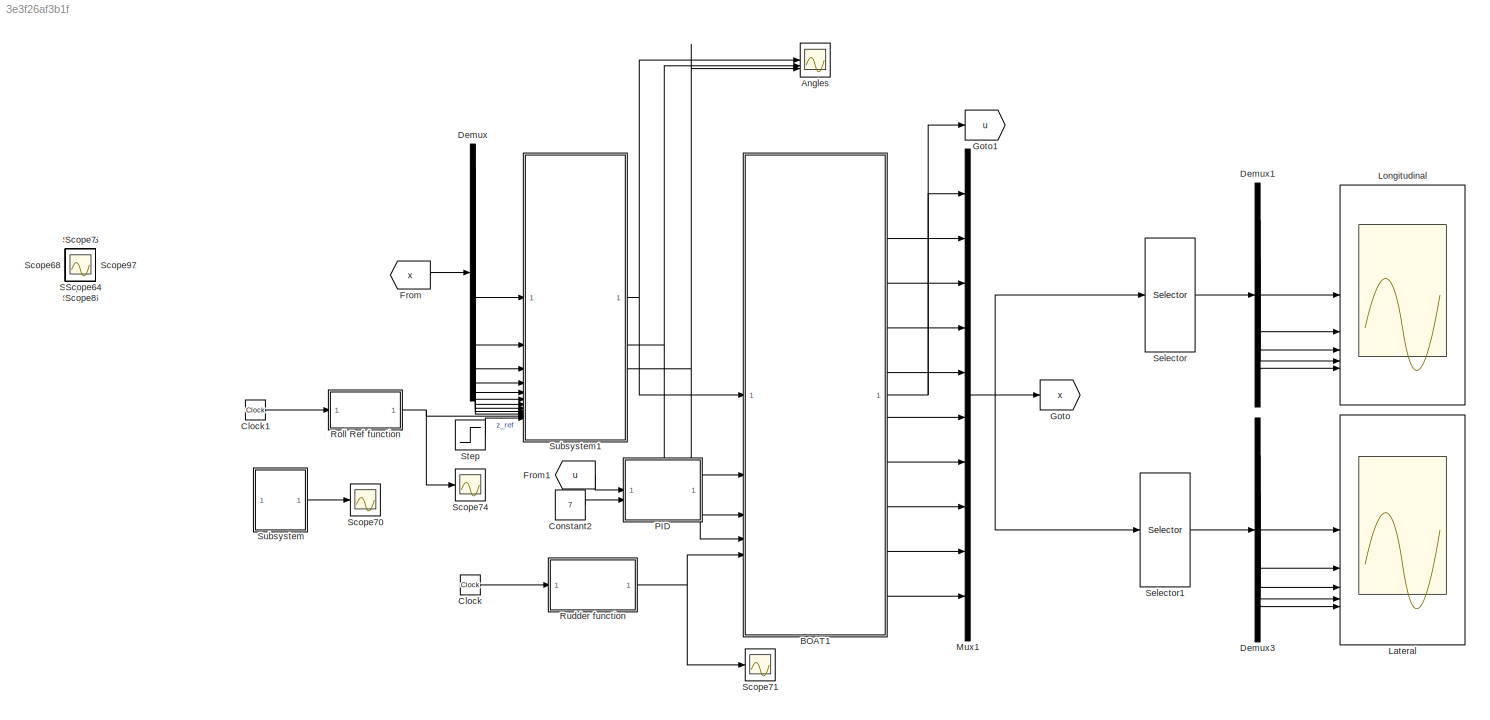
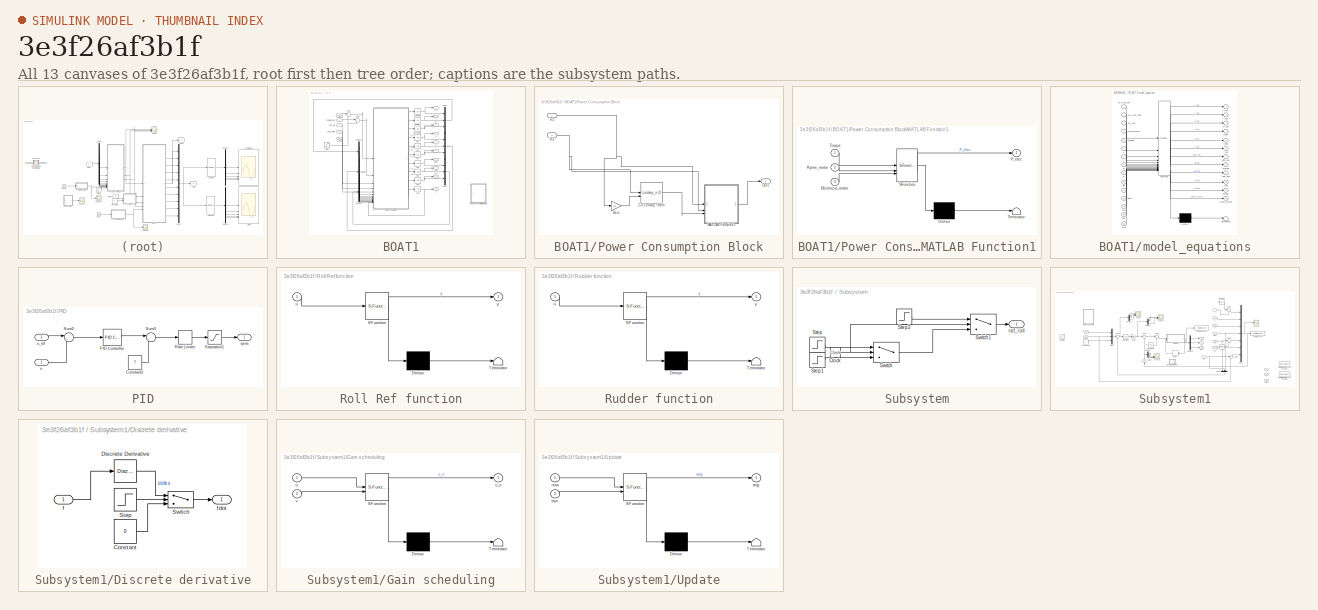
[diagram: thumbnail index - all 13 canvases of the model, root first then tree order]
MODEL slx_3e3f26af3b1f
KIND model
CONFIG AbsTol = auto
CONFIG EnableMultiTasking = off
CONFIG FixedStep = auto
CONFIG MaxStep = auto
CONFIG MinStep = auto
CONFIG RelTol = 1e-3
CONFIG SampleTimeConstraint = Unconstrained
CONFIG SolverName = VariableStepAuto
CONFIG StartTime = 0.0
CONFIG StopTime = 20
BLOCK [Scope] Angles
  Floating = off
  NumInputPorts = 3
  ScopeSpecificationString = Simulink.scopes.TimeScopeBlockCfg('CurrentConfiguration', extmgr.ConfigurationSet(extmgr.Configuration('Core','General UI',true),extmgr.Configuration('Core','Source UI',true),extmgr.Configuration('Sources','WiredSimulink',true,'DataLoggingVariableName','ScopeData1'),extmgr.Configuration('Visuals','Time Domain',true,'SerializedDisplays',{struct('MinYLimReal','-0.82863','MaxYLimReal','4.03651','YLab...<+2285ch>
BLOCK [SubSystem] BOAT1
BLOCK [Demux] BOAT1/Demux1
  Outputs = 3
BLOCK [Demux] BOAT1/Demux2
  Outputs = 3
BLOCK [Demux] BOAT1/Demux3
  Outputs = 3
BLOCK [Mux] BOAT1/Mux1
  DisplayOption = bar
  Inputs = 3
BLOCK [Mux] BOAT1/Mux2
  DisplayOption = bar
  Inputs = 3
BLOCK [Mux] BOAT1/Mux4
  DisplayOption = bar
  Inputs = 3
BLOCK [SubSystem] BOAT1/Power Consumption Block
  Commented = on
BLOCK [Lookup_n-D] BOAT1/Power Consumption Block/2-D Lookup Table
  BreakpointsForDimension1 = [1:6000]
  BreakpointsForDimension2 = [1:140]
  InputPortMap = u0,u1
  InternalRulePriority = Speed
  RndMeth = Simplest
  Table = Eff
BLOCK [Gain] BOAT1/Power Consumption Block/Gain
  Gain = 10
BLOCK [Inport] BOAT1/Power Consumption Block/In1
BLOCK [Inport] BOAT1/Power Consumption Block/In2
  Port = 2
BLOCK [SubSystem] BOAT1/Power Consumption Block/MATLAB Function1
  ErrorFcn = Stateflow.Translate.translate
  PermitHierarchicalResolution = ExplicitOnly
  SFBlockType = MATLAB Function
  TreatAsAtomicUnit = on
BLOCK [Demux] BOAT1/Power Consumption Block/MATLAB Function1/ Demux 
  Outputs = 1
BLOCK [S-Function] BOAT1/Power Consumption Block/MATLAB Function1/ SFunction 
  EnableBusSupport = off
  FunctionName = sf_sfun
  PortCounts = [3 2]
  SFcnIsStateOwnerBlock = off
  SFunctionDeploymentMode = off
  Tag = Stateflow S-Function 8
BLOCK [Terminator] BOAT1/Power Consumption Block/MATLAB Function1/ Terminator 
BLOCK [Inport] BOAT1/Power Consumption Block/MATLAB Function1/Eficiencia_motor
  Port = 3
BLOCK [Outport] BOAT1/Power Consumption Block/MATLAB Function1/P_elec
BLOCK [Inport] BOAT1/Power Consumption Block/MATLAB Function1/Rpms_motor
  Port = 2
BLOCK [Inport] BOAT1/Power Consumption Block/MATLAB Function1/Torque
BLOCK [Outport] BOAT1/Power Consumption Block/Out1
BLOCK [Step] BOAT1/Step
  After = 0
  SampleTime = 0
  Time = 0
BLOCK [Sum] BOAT1/Sum
  Inputs = |++
BLOCK [Sum] BOAT1/Sum1
  Inputs = |+-
BLOCK [Integrator] BOAT1/aUSPEED
  InitialCondition = initial_uspeed
BLOCK [Integrator] BOAT1/bWSPEED
  InitialCondition = initial_wspeed
BLOCK [Integrator] BOAT1/cQ
  InitialCondition = initial_Q
BLOCK [Integrator] BOAT1/fVSPEED
  InitialCondition = initial_vspeed
BLOCK [Inport] BOAT1/frontfoil_left
BLOCK [Inport] BOAT1/frontfoil_right
  Port = 2
BLOCK [Integrator] BOAT1/gP
  InitialCondition = initial_P
BLOCK [Integrator] BOAT1/hR
  InitialCondition = initial_R
BLOCK [Integrator] BOAT1/hR1
  InitialCondition = initial_Pitch
BLOCK [Integrator] BOAT1/hR2
  InitialCondition = initial_ROLL
BLOCK [Integrator] BOAT1/hR3
  InitialCondition = initial_YAW
BLOCK [Integrator] BOAT1/hR4
  InitialCondition = initial_Z
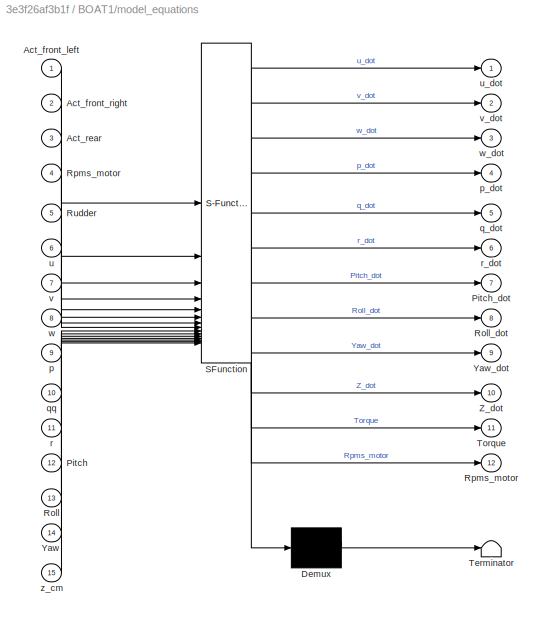
BLOCK [SubSystem] BOAT1/model_equations
  ErrorFcn = Stateflow.Translate.translate
  PermitHierarchicalResolution = ExplicitOnly
  SFBlockType = MATLAB Function
  TreatAsAtomicUnit = on
  VariantControl = Variant1
BLOCK [Demux] BOAT1/model_equations/ Demux 
  Outputs = 1
BLOCK [S-Function] BOAT1/model_equations/ SFunction 
  EnableBusSupport = on
  FunctionName = sf_sfun
  PortCounts = [15 13]
  SFcnIsStateOwnerBlock = off
  SFunctionDeploymentMode = off
  Tag = Stateflow S-Function 9
BLOCK [Terminator] BOAT1/model_equations/ Terminator 
BLOCK [Inport] BOAT1/model_equations/Act_front_left
BLOCK [Inport] BOAT1/model_equations/Act_front_right
  Port = 2
BLOCK [Inport] BOAT1/model_equations/Act_rear
  Port = 3
BLOCK [Inport] BOAT1/model_equations/Pitch
  Port = 12
BLOCK [Outport] BOAT1/model_equations/Pitch_dot
  Port = 7
BLOCK [Inport] BOAT1/model_equations/Roll
  Port = 13
BLOCK [Outport] BOAT1/model_equations/Roll_dot
  Port = 8
BLOCK [Outport] BOAT1/model_equations/Rpms_motor
  Port = 12
BLOCK [Inport] BOAT1/model_equations/Rpms_motor 
  Port = 4
BLOCK [Inport] BOAT1/model_equations/Rudder
  Port = 5
BLOCK [Outport] BOAT1/model_equations/Torque
  Port = 11
BLOCK [Inport] BOAT1/model_equations/Yaw
  Port = 14
BLOCK [Outport] BOAT1/model_equations/Yaw_dot
  Port = 9
BLOCK [Outport] BOAT1/model_equations/Z_dot
  Port = 10
BLOCK [Inport] BOAT1/model_equations/p
  Port = 9
BLOCK [Outport] BOAT1/model_equations/p_dot
  Port = 4
  VectorParamsAs1DForOutWhenUnconnected = off
BLOCK [Outport] BOAT1/model_equations/q_dot
  Port = 5
BLOCK [Inport] BOAT1/model_equations/qq
  Port = 10
BLOCK [Inport] BOAT1/model_equations/r
  Port = 11
BLOCK [Outport] BOAT1/model_equations/r_dot
  Port = 6
BLOCK [Inport] BOAT1/model_equations/u
  Port = 6
BLOCK [Outport] BOAT1/model_equations/u_dot
  VectorParamsAs1DForOutWhenUnconnected = off
BLOCK [Inport] BOAT1/model_equations/v
  Port = 7
BLOCK [Outport] BOAT1/model_equations/v_dot
  Port = 2
BLOCK [Inport] BOAT1/model_equations/w
  Port = 8
BLOCK [Outport] BOAT1/model_equations/w_dot
  Port = 3
  VectorParamsAs1DForOutWhenUnconnected = off
BLOCK [Inport] BOAT1/model_equations/z_cm
  Port = 15
BLOCK [Outport] BOAT1/p
  Port = 4
  VectorParamsAs1DForOutWhenUnconnected = off
BLOCK [Outport] BOAT1/pitch
  Port = 7
  VectorParamsAs1DForOutWhenUnconnected = off
BLOCK [Outport] BOAT1/q
  Port = 5
  VectorParamsAs1DForOutWhenUnconnected = off
BLOCK [Outport] BOAT1/r
  Port = 6
  VectorParamsAs1DForOutWhenUnconnected = off
BLOCK [Inport] BOAT1/rear_foil
  Port = 3
BLOCK [Outport] BOAT1/roll
  Port = 8
  VectorParamsAs1DForOutWhenUnconnected = off
BLOCK [Inport] BOAT1/rpms_motor
  Port = 4
BLOCK [Inport] BOAT1/rudder
  Port = 5
BLOCK [Outport] BOAT1/u
  VectorParamsAs1DForOutWhenUnconnected = off
BLOCK [Outport] BOAT1/v
  Port = 2
  VectorParamsAs1DForOutWhenUnconnected = off
BLOCK [Outport] BOAT1/w
  Port = 3
  VectorParamsAs1DForOutWhenUnconnected = off
BLOCK [Outport] BOAT1/yaw
  Port = 9
  VectorParamsAs1DForOutWhenUnconnected = off
BLOCK [Outport] BOAT1/z
  Port = 10
  VectorParamsAs1DForOutWhenUnconnected = off
BLOCK [Clock] Clock
BLOCK [Clock] Clock1
BLOCK [Constant] Constant2
  Value = 7
BLOCK [Demux] Demux
  Outputs = 10
BLOCK [Demux] Demux1
  Outputs = 5
BLOCK [Demux] Demux3
  Outputs = 5
BLOCK [From] From
  GotoTag = x
BLOCK [From] From1
  GotoTag = u
BLOCK [Goto] Goto
  GotoTag = x
BLOCK [Goto] Goto1
  GotoTag = u
BLOCK [Scope] Lateral
  Floating = off
  NumInputPorts = 5
  ScopeSpecificationString = Simulink.scopes.TimeScopeBlockCfg('CurrentConfiguration', extmgr.ConfigurationSet(extmgr.Configuration('Core','General UI',true),extmgr.Configuration('Core','Source UI',true),extmgr.Configuration('Sources','WiredSimulink',true,'DataLoggingVariableName','ScopeData1'),extmgr.Configuration('Visuals','Time Domain',true,'SerializedDisplays',{struct('MinYLimReal','-0.98732','MaxYLimReal','0.11504','YLab...<+5430ch>
BLOCK [Scope] Longitudinal
  Floating = off
  NameLocation = top
  NumInputPorts = 5
  ScopeSpecificationString = Simulink.scopes.TimeScopeBlockCfg('CurrentConfiguration', extmgr.ConfigurationSet(extmgr.Configuration('Core','General UI',true),extmgr.Configuration('Core','Source UI',true),extmgr.Configuration('Sources','WiredSimulink',true,'DataLoggingVariableName','ScopeData2'),extmgr.Configuration('Visuals','Time Domain',true,'SerializedDisplays',{struct('MinYLimReal','6.87133','MaxYLimReal','7.11107','YLabe...<+5114ch>
BLOCK [Mux] Mux1
  DisplayOption = bar
  Inputs = 10
BLOCK [SubSystem] PID
BLOCK [Constant] PID/Constant2
  Value = T
BLOCK [Reference] PID/PID Controller  REF=slpidlib/PID Controller
  SourceBlock = slpidlib/PID Controller
  SourceType = PID 1dof
BLOCK [RateLimiter] PID/Rate Limiter
  FallingSlewLimit = -1000
  InitialCondition = T
  RisingSlewLimit = 1000
  SampleTimeMode = inherited
BLOCK [Saturate] PID/Saturation1
  UpperLimit = 9000
BLOCK [Sum] PID/Sum2
  Inputs = |+-
BLOCK [Sum] PID/Sum3
  Inputs = |++
BLOCK [Outport] PID/rpms
BLOCK [Inport] PID/u
  NameLocation = top
BLOCK [Inport] PID/u_ref
  Port = 2
BLOCK [SubSystem] Roll Ref function
  ErrorFcn = Stateflow.Translate.translate
  PermitHierarchicalResolution = ExplicitOnly
  SFBlockType = MATLAB Function
  TreatAsAtomicUnit = on
BLOCK [Demux] Roll Ref function/ Demux 
  Outputs = 1
BLOCK [S-Function] Roll Ref function/ SFunction 
  EnableBusSupport = on
  FunctionName = sf_sfun
  PortCounts = [1 2]
  SFcnIsStateOwnerBlock = off
  SFunctionDeploymentMode = off
  Tag = Stateflow S-Function 5
BLOCK [Terminator] Roll Ref function/ Terminator 
BLOCK [Inport] Roll Ref function/u
BLOCK [Outport] Roll Ref function/y
BLOCK [SubSystem] Rudder function
  ErrorFcn = Stateflow.Translate.translate
  PermitHierarchicalResolution = ExplicitOnly
  SFBlockType = MATLAB Function
  TreatAsAtomicUnit = on
BLOCK [Demux] Rudder function/ Demux 
  Outputs = 1
BLOCK [S-Function] Rudder function/ SFunction 
  EnableBusSupport = on
  FunctionName = sf_sfun
  PortCounts = [1 2]
  SFcnIsStateOwnerBlock = off
  SFunctionDeploymentMode = off
  Tag = Stateflow S-Function 3
BLOCK [Terminator] Rudder function/ Terminator 
BLOCK [Inport] Rudder function/u
BLOCK [Outport] Rudder function/y
BLOCK [Scope] Scope
  Floating = off
  IOType = viewer
  NumInputPorts = 1
  ScopeSpecificationString = Simulink.scopes.TimeScopeBlockCfg('CurrentConfiguration', extmgr.ConfigurationSet(extmgr.Configuration('Core','General UI',true),extmgr.Configuration('Core','Source UI',true),extmgr.Configuration('Sources','WiredSimulink',true,'DataLoggingVariableName','ScopeData1'),extmgr.Configuration('Visuals','Time Domain',true,'SerializedDisplays',{struct('MinYLimReal','4.06844','MaxYLimReal','5.18693','YLabe...<+1411ch>
BLOCK [Scope] Scope1
  Floating = off
  IOType = viewer
  NumInputPorts = 1
  ScopeSpecificationString = Simulink.scopes.TimeScopeBlockCfg('CurrentConfiguration', extmgr.ConfigurationSet(extmgr.Configuration('Core','General UI',true),extmgr.Configuration('Core','Source UI',true),extmgr.Configuration('Sources','WiredSimulink',true,'DataLoggingVariableName','ScopeData1'),extmgr.Configuration('Visuals','Time Domain',true,'SerializedDisplays',{struct('MinYLimReal','-0.69407','MaxYLimReal','1.09135','YLab...<+1388ch>
BLOCK [Scope] Scope10
  Floating = off
  IOType = viewer
  NumInputPorts = 1
  ScopeSpecificationString = Simulink.scopes.TimeScopeBlockCfg('CurrentConfiguration', extmgr.ConfigurationSet(extmgr.Configuration('Core','General UI',true),extmgr.Configuration('Core','Source UI',true),extmgr.Configuration('Sources','WiredSimulink',true,'DataLoggingVariableName','ScopeData1'),extmgr.Configuration('Visuals','Time Domain',true,'SerializedDisplays',{struct('MinYLimReal','-1.00000','MaxYLimReal','1.00000','YLab...<+1359ch>
BLOCK [Scope] Scope11
  Floating = off
  IOType = viewer
  NumInputPorts = 1
  ScopeSpecificationString = Simulink.scopes.TimeScopeBlockCfg('CurrentConfiguration', extmgr.ConfigurationSet(extmgr.Configuration('Core','General UI',true),extmgr.Configuration('Core','Source UI',true),extmgr.Configuration('Sources','WiredSimulink',true,'DataLoggingVariableName','ScopeData1'),extmgr.Configuration('Visuals','Time Domain',true,'SerializedDisplays',{struct('MinYLimReal','-2.99323','MaxYLimReal','6.45603','YLab...<+1359ch>
BLOCK [Scope] Scope12
  Floating = off
  IOType = viewer
  NumInputPorts = 1
  ScopeSpecificationString = Simulink.scopes.TimeScopeBlockCfg('CurrentConfiguration', extmgr.ConfigurationSet(extmgr.Configuration('Core','General UI',true),extmgr.Configuration('Core','Source UI',true),extmgr.Configuration('Sources','WiredSimulink',true,'DataLoggingVariableName','ScopeData1'),extmgr.Configuration('Visuals','Time Domain',true,'SerializedDisplays',{struct('MinYLimReal','-0.5','MaxYLimReal','-0.3','YLabelReal'...<+1337ch>
BLOCK [Scope] Scope13
  Floating = off
  IOType = viewer
  NumInputPorts = 1
  ScopeSpecificationString = Simulink.scopes.TimeScopeBlockCfg('CurrentConfiguration', extmgr.ConfigurationSet(extmgr.Configuration('Core','General UI',true),extmgr.Configuration('Core','Source UI',true),extmgr.Configuration('Sources','WiredSimulink',true,'DataLoggingVariableName','ScopeData1'),extmgr.Configuration('Visuals','Time Domain',true,'SerializedDisplays',{struct('MinYLimReal','-1068104.69611','MaxYLimReal','9611384....<+1434ch>
BLOCK [Scope] Scope14
  Floating = off
  IOType = viewer
  NumInputPorts = 1
  ScopeSpecificationString = Simulink.scopes.TimeScopeBlockCfg('CurrentConfiguration', extmgr.ConfigurationSet(extmgr.Configuration('Core','General UI',true),extmgr.Configuration('Core','Source UI',true),extmgr.Configuration('Sources','WiredSimulink',true,'DataLoggingVariableName','ScopeData1'),extmgr.Configuration('Visuals','Time Domain',true,'SerializedDisplays',{struct('MinYLimReal','-10.00000','MaxYLimReal','10.00000','YL...<+1394ch>
BLOCK [Scope] Scope15
  Floating = off
  IOType = viewer
  NumInputPorts = 1
  ScopeSpecificationString = Simulink.scopes.TimeScopeBlockCfg('CurrentConfiguration', extmgr.ConfigurationSet(extmgr.Configuration('Core','General UI',true),extmgr.Configuration('Core','Source UI',true),extmgr.Configuration('Sources','WiredSimulink',true,'DataLoggingVariableName','ScopeData2'),extmgr.Configuration('Visuals','Time Domain',true,'SerializedDisplays',{struct('MinYLimReal','0.42395','MaxYLimReal','1.1452','YLabel...<+1353ch>
BLOCK [Scope] Scope16
  Floating = off
  IOType = viewer
  NumInputPorts = 1
  ScopeSpecificationString = Simulink.scopes.TimeScopeBlockCfg('CurrentConfiguration', extmgr.ConfigurationSet(extmgr.Configuration('Core','General UI',true),extmgr.Configuration('Core','Source UI',true),extmgr.Configuration('Sources','WiredSimulink',true,'DataLoggingVariableName','ScopeData1'),extmgr.Configuration('Visuals','Time Domain',true,'SerializedDisplays',{struct('MinYLimReal','1787.16851','MaxYLimReal','6468.09239',...<+1381ch>
BLOCK [Scope] Scope17
  Floating = off
  IOType = viewer
  NumInputPorts = 1
  ScopeSpecificationString = Simulink.scopes.TimeScopeBlockCfg('CurrentConfiguration', extmgr.ConfigurationSet(extmgr.Configuration('Core','General UI',true),extmgr.Configuration('Core','Source UI',true),extmgr.Configuration('Sources','WiredSimulink',true,'DataLoggingVariableName','ScopeData2'),extmgr.Configuration('Visuals','Time Domain',true,'SerializedDisplays',{struct('MinYLimReal','-3.58864','MaxYLimReal','2.29775','YLab...<+1402ch>
BLOCK [Scope] Scope18
  Floating = off
  IOType = viewer
  NumInputPorts = 1
  ScopeSpecificationString = Simulink.scopes.TimeScopeBlockCfg('CurrentConfiguration', extmgr.ConfigurationSet(extmgr.Configuration('Core','General UI',true),extmgr.Configuration('Core','Source UI',true),extmgr.Configuration('Sources','WiredSimulink',true,'DataLoggingVariableName','ScopeData3'),extmgr.Configuration('Visuals','Time Domain',true,'SerializedDisplays',{struct('MinYLimReal','1.68278','MaxYLimReal','4.37574','YLabe...<+1357ch>
BLOCK [Scope] Scope19
  Floating = off
  IOType = viewer
  NumInputPorts = 1
  ScopeSpecificationString = Simulink.scopes.TimeScopeBlockCfg('CurrentConfiguration', extmgr.ConfigurationSet(extmgr.Configuration('Core','General UI',true),extmgr.Configuration('Core','Source UI',true),extmgr.Configuration('Sources','WiredSimulink',true,'DataLoggingVariableName','ScopeData1'),extmgr.Configuration('Visuals','Time Domain',true,'SerializedDisplays',{struct('MinYLimReal','-22.41764','MaxYLimReal','23.2781','YLa...<+1396ch>
BLOCK [Scope] Scope2
  Floating = off
  IOType = viewer
  NumInputPorts = 1
  ScopeSpecificationString = Simulink.scopes.TimeScopeBlockCfg('CurrentConfiguration', extmgr.ConfigurationSet(extmgr.Configuration('Core','General UI',true),extmgr.Configuration('Core','Source UI',true),extmgr.Configuration('Sources','WiredSimulink',true,'DataLoggingVariableName','ScopeData1'),extmgr.Configuration('Visuals','Time Domain',true,'SerializedDisplays',{struct('MinYLimReal','-0.5195','MaxYLimReal','-0.33996','YLab...<+1357ch>
BLOCK [Scope] Scope20
  Floating = off
  IOType = viewer
  NumInputPorts = 1
  ScopeSpecificationString = Simulink.scopes.TimeScopeBlockCfg('CurrentConfiguration', extmgr.ConfigurationSet(extmgr.Configuration('Core','General UI',true),extmgr.Configuration('Core','Source UI',true),extmgr.Configuration('Sources','WiredSimulink',true,'DataLoggingVariableName','ScopeData8'),extmgr.Configuration('Visuals','Time Domain',true,'SerializedDisplays',{struct('MinYLimReal','-2.49229','MaxYLimReal','15.10017','YLa...<+1398ch>
BLOCK [Scope] Scope21
  Floating = off
  IOType = viewer
  NumInputPorts = 1
  ScopeSpecificationString = Simulink.scopes.TimeScopeBlockCfg('CurrentConfiguration', extmgr.ConfigurationSet(extmgr.Configuration('Core','General UI',true),extmgr.Configuration('Core','Source UI',true),extmgr.Configuration('Sources','WiredSimulink',true,'DataLoggingVariableName','ScopeData3'),extmgr.Configuration('Visuals','Time Domain',true,'SerializedDisplays',{struct('MinYLimReal','-18648991873633264003448832.00000','Max...<+1561ch>
BLOCK [Scope] Scope22
  Floating = off
  IOType = viewer
  NumInputPorts = 1
  ScopeSpecificationString = Simulink.scopes.TimeScopeBlockCfg('CurrentConfiguration', extmgr.ConfigurationSet(extmgr.Configuration('Core','General UI',true),extmgr.Configuration('Core','Source UI',true),extmgr.Configuration('Sources','WiredSimulink',true,'DataLoggingVariableName','ScopeData4'),extmgr.Configuration('Visuals','Time Domain',true,'SerializedDisplays',{struct('MinYLimReal','65.875','MaxYLimReal','77.125','YLabelR...<+1384ch>
BLOCK [Scope] Scope23
  Floating = off
  IOType = viewer
  NumInputPorts = 1
  ScopeSpecificationString = Simulink.scopes.TimeScopeBlockCfg('CurrentConfiguration', extmgr.ConfigurationSet(extmgr.Configuration('Core','General UI',true),extmgr.Configuration('Core','Source UI',true),extmgr.Configuration('Sources','WiredSimulink',true,'DataLoggingVariableName','ScopeData5'),extmgr.Configuration('Visuals','Time Domain',true,'SerializedDisplays',{struct('MinYLimReal','-2.10514','MaxYLimReal','8.21253','YLab...<+1394ch>
BLOCK [Scope] Scope24
  Floating = off
  IOType = viewer
  NumInputPorts = 1
  ScopeSpecificationString = Simulink.scopes.TimeScopeBlockCfg('CurrentConfiguration', extmgr.ConfigurationSet(extmgr.Configuration('Core','General UI',true),extmgr.Configuration('Core','Source UI',true),extmgr.Configuration('Sources','WiredSimulink',true,'DataLoggingVariableName','ScopeData6'),extmgr.Configuration('Visuals','Time Domain',true,'SerializedDisplays',{struct('MinYLimReal','6.6875','MaxYLimReal','7.8125','YLabelR...<+1384ch>
BLOCK [Scope] Scope25
  Floating = off
  IOType = viewer
  NumInputPorts = 1
  ScopeSpecificationString = Simulink.scopes.TimeScopeBlockCfg('CurrentConfiguration', extmgr.ConfigurationSet(extmgr.Configuration('Core','General UI',true),extmgr.Configuration('Core','Source UI',true),extmgr.Configuration('Sources','WiredSimulink',true,'DataLoggingVariableName','ScopeData7'),extmgr.Configuration('Visuals','Time Domain',true,'SerializedDisplays',{struct('MinYLimReal','65.875','MaxYLimReal','77.125','YLabelR...<+1384ch>
BLOCK [Scope] Scope26
  Floating = off
  IOType = viewer
  NumInputPorts = 1
  ScopeSpecificationString = Simulink.scopes.TimeScopeBlockCfg('CurrentConfiguration', extmgr.ConfigurationSet(extmgr.Configuration('Core','General UI',true),extmgr.Configuration('Core','Source UI',true),extmgr.Configuration('Sources','WiredSimulink',true,'DataLoggingVariableName','ScopeData10'),extmgr.Configuration('Visuals','Time Domain',true,'SerializedDisplays',{struct('MinYLimReal','-0.30684','MaxYLimReal','1.12166','YLa...<+1395ch>
BLOCK [Scope] Scope27
  Floating = off
  IOType = viewer
  NumInputPorts = 1
  ScopeSpecificationString = Simulink.scopes.TimeScopeBlockCfg('CurrentConfiguration', extmgr.ConfigurationSet(extmgr.Configuration('Core','General UI',true),extmgr.Configuration('Core','Source UI',true),extmgr.Configuration('Sources','WiredSimulink',true,'DataLoggingVariableName','ScopeData9'),extmgr.Configuration('Visuals','Time Domain',true,'SerializedDisplays',{struct('MinYLimReal','-6.44173','MaxYLimReal','11.95964','YLa...<+1400ch>
BLOCK [Scope] Scope28
  Floating = off
  IOType = viewer
  NumInputPorts = 1
  ScopeSpecificationString = Simulink.scopes.TimeScopeBlockCfg('CurrentConfiguration', extmgr.ConfigurationSet(extmgr.Configuration('Core','General UI',true),extmgr.Configuration('Core','Source UI',true),extmgr.Configuration('Sources','WiredSimulink',true,'DataLoggingVariableName','ScopeData1'),extmgr.Configuration('Visuals','Time Domain',true,'SerializedDisplays',{struct('MinYLimReal','-1.33813','MaxYLimReal','6.81535','YLab...<+1394ch>
BLOCK [Scope] Scope29
  Floating = off
  IOType = viewer
  NumInputPorts = 1
  ScopeSpecificationString = Simulink.scopes.TimeScopeBlockCfg('CurrentConfiguration', extmgr.ConfigurationSet(extmgr.Configuration('Core','General UI',true),extmgr.Configuration('Core','Source UI',true),extmgr.Configuration('Sources','WiredSimulink',true,'DataLoggingVariableName','ScopeData1'),extmgr.Configuration('Visuals','Time Domain',true,'SerializedDisplays',{struct('MinYLimReal','-91.65644','MaxYLimReal','71.78464','YL...<+1400ch>
BLOCK [Scope] Scope3
  Floating = off
  IOType = viewer
  NumInputPorts = 1
  ScopeSpecificationString = Simulink.scopes.TimeScopeBlockCfg('CurrentConfiguration', extmgr.ConfigurationSet(extmgr.Configuration('Core','General UI',true),extmgr.Configuration('Core','Source UI',true),extmgr.Configuration('Sources','WiredSimulink',true,'DataLoggingVariableName','ScopeData1'),extmgr.Configuration('Visuals','Time Domain',true,'SerializedDisplays',{struct('MinYLimReal','4.2','MaxYLimReal','6.2','YLabelReal','...<+1325ch>
BLOCK [Scope] Scope30
  Floating = off
  IOType = viewer
  NumInputPorts = 1
  ScopeSpecificationString = Simulink.scopes.TimeScopeBlockCfg('CurrentConfiguration', extmgr.ConfigurationSet(extmgr.Configuration('Core','General UI',true),extmgr.Configuration('Core','Source UI',true),extmgr.Configuration('Sources','WiredSimulink',true,'DataLoggingVariableName','ScopeData1'),extmgr.Configuration('Visuals','Time Domain',true,'SerializedDisplays',{struct('MinYLimReal','-15.92323','MaxYLimReal','34.55654','YL...<+1400ch>
BLOCK [Scope] Scope31
  Floating = off
  IOType = viewer
  NumInputPorts = 1
  ScopeSpecificationString = Simulink.scopes.TimeScopeBlockCfg('CurrentConfiguration', extmgr.ConfigurationSet(extmgr.Configuration('Core','General UI',true),extmgr.Configuration('Core','Source UI',true),extmgr.Configuration('Sources','WiredSimulink',true,'DataLoggingVariableName','ScopeData1'),extmgr.Configuration('Visuals','Time Domain',true,'SerializedDisplays',{struct('MinYLimReal','-0.5126','MaxYLimReal','0.69257','YLabe...<+1392ch>
BLOCK [Scope] Scope32
  Floating = off
  IOType = viewer
  NumInputPorts = 1
  ScopeSpecificationString = Simulink.scopes.TimeScopeBlockCfg('CurrentConfiguration', extmgr.ConfigurationSet(extmgr.Configuration('Core','General UI',true),extmgr.Configuration('Core','Source UI',true),extmgr.Configuration('Sources','WiredSimulink',true,'DataLoggingVariableName','ScopeData1'),extmgr.Configuration('Visuals','Time Domain',true,'SerializedDisplays',{struct('MinYLimReal','-0.125','MaxYLimReal','1.125','YLabelRe...<+1382ch>
BLOCK [Scope] Scope33
  Floating = off
  IOType = viewer
  NumInputPorts = 1
  ScopeSpecificationString = Simulink.scopes.TimeScopeBlockCfg('CurrentConfiguration', extmgr.ConfigurationSet(extmgr.Configuration('Core','General UI',true),extmgr.Configuration('Core','Source UI',true),extmgr.Configuration('Sources','WiredSimulink',true,'DataLoggingVariableName','ScopeData2'),extmgr.Configuration('Visuals','Time Domain',true,'SerializedDisplays',{struct('MinYLimReal','-1.32547','MaxYLimReal','7.92916','YLab...<+1413ch>
BLOCK [Scope] Scope34
  Floating = off
  IOType = viewer
  NumInputPorts = 1
  ScopeSpecificationString = Simulink.scopes.TimeScopeBlockCfg('CurrentConfiguration', extmgr.ConfigurationSet(extmgr.Configuration('Core','General UI',true),extmgr.Configuration('Core','Source UI',true),extmgr.Configuration('Sources','WiredSimulink',true,'DataLoggingVariableName','ScopeData3'),extmgr.Configuration('Visuals','Time Domain',true,'SerializedDisplays',{struct('MinYLimReal','-0.0375','MaxYLimReal','0.3375','YLabel...<+1388ch>
BLOCK [Scope] Scope35
  Floating = off
  IOType = viewer
  NumInputPorts = 1
  ScopeSpecificationString = Simulink.scopes.TimeScopeBlockCfg('CurrentConfiguration', extmgr.ConfigurationSet(extmgr.Configuration('Core','General UI',true),extmgr.Configuration('Core','Source UI',true),extmgr.Configuration('Sources','WiredSimulink',true,'DataLoggingVariableName','ScopeData4'),extmgr.Configuration('Visuals','Time Domain',true,'SerializedDisplays',{struct('MinYLimReal','-3.91195','MaxYLimReal','9.06917','YLab...<+1394ch>
BLOCK [Scope] Scope36
  Floating = off
  IOType = viewer
  NumInputPorts = 1
  ScopeSpecificationString = Simulink.scopes.TimeScopeBlockCfg('CurrentConfiguration', extmgr.ConfigurationSet(extmgr.Configuration('Core','General UI',true),extmgr.Configuration('Core','Source UI',true),extmgr.Configuration('Sources','WiredSimulink',true,'DataLoggingVariableName','ScopeData5'),extmgr.Configuration('Visuals','Time Domain',true,'SerializedDisplays',{struct('MinYLimReal','-606.77276','MaxYLimReal','5476.0946','...<+1408ch>
BLOCK [Scope] Scope37
  Floating = off
  IOType = viewer
  NumInputPorts = 1
  ScopeSpecificationString = Simulink.scopes.TimeScopeBlockCfg('CurrentConfiguration', extmgr.ConfigurationSet(extmgr.Configuration('Core','General UI',true),extmgr.Configuration('Core','Source UI',true),extmgr.Configuration('Sources','WiredSimulink',true,'DataLoggingVariableName','ScopeData6'),extmgr.Configuration('Visuals','Time Domain',true,'SerializedDisplays',{struct('MinYLimReal','3678.10103','MaxYLimReal','5281.1876','...<+1431ch>
BLOCK [Scope] Scope38
  Floating = off
  IOType = viewer
  NumInputPorts = 1
  ScopeSpecificationString = Simulink.scopes.TimeScopeBlockCfg('CurrentConfiguration', extmgr.ConfigurationSet(extmgr.Configuration('Core','General UI',true),extmgr.Configuration('Core','Source UI',true),extmgr.Configuration('Sources','WiredSimulink',true,'DataLoggingVariableName','ScopeData7'),extmgr.Configuration('Visuals','Time Domain',true,'SerializedDisplays',{struct('MinYLimReal','-0.125','MaxYLimReal','1.125','YLabelRe...<+1382ch>
BLOCK [Scope] Scope39
  Floating = off
  IOType = viewer
  NumInputPorts = 1
  ScopeSpecificationString = Simulink.scopes.TimeScopeBlockCfg('CurrentConfiguration', extmgr.ConfigurationSet(extmgr.Configuration('Core','General UI',true),extmgr.Configuration('Core','Source UI',true),extmgr.Configuration('Sources','WiredSimulink',true,'DataLoggingVariableName','ScopeData8'),extmgr.Configuration('Visuals','Time Domain',true,'SerializedDisplays',{struct('MinYLimReal','-603.58579','MaxYLimReal','5447.41188',...<+1412ch>
BLOCK [Scope] Scope4
  Floating = off
  IOType = viewer
  NumInputPorts = 1
  ScopeSpecificationString = Simulink.scopes.TimeScopeBlockCfg('CurrentConfiguration', extmgr.ConfigurationSet(extmgr.Configuration('Core','General UI',true),extmgr.Configuration('Core','Source UI',true),extmgr.Configuration('Sources','WiredSimulink',true,'DataLoggingVariableName','ScopeData1'),extmgr.Configuration('Visuals','Time Domain',true,'SerializedDisplays',{struct('MinYLimReal','-0.58125','MaxYLimReal','-0.16875','YLa...<+1361ch>
BLOCK [Scope] Scope40
  Floating = off
  IOType = viewer
  NumInputPorts = 1
  ScopeSpecificationString = Simulink.scopes.TimeScopeBlockCfg('CurrentConfiguration', extmgr.ConfigurationSet(extmgr.Configuration('Core','General UI',true),extmgr.Configuration('Core','Source UI',true),extmgr.Configuration('Sources','WiredSimulink',true,'DataLoggingVariableName','ScopeData9'),extmgr.Configuration('Visuals','Time Domain',true,'SerializedDisplays',{struct('MinYLimReal','-1.2225','MaxYLimReal','11.0025','YLabe...<+1357ch>
BLOCK [Scope] Scope41
  Floating = off
  IOType = viewer
  NumInputPorts = 1
  ScopeSpecificationString = Simulink.scopes.TimeScopeBlockCfg('CurrentConfiguration', extmgr.ConfigurationSet(extmgr.Configuration('Core','General UI',true),extmgr.Configuration('Core','Source UI',true),extmgr.Configuration('Sources','WiredSimulink',true,'DataLoggingVariableName','ScopeData10'),extmgr.Configuration('Visuals','Time Domain',true,'SerializedDisplays',{struct('MinYLimReal','-10.4729','MaxYLimReal','9.39556','YLa...<+1414ch>
BLOCK [Scope] Scope42
  Floating = off
  IOType = viewer
  NumInputPorts = 1
  ScopeSpecificationString = Simulink.scopes.TimeScopeBlockCfg('CurrentConfiguration', extmgr.ConfigurationSet(extmgr.Configuration('Core','General UI',true),extmgr.Configuration('Core','Source UI',true),extmgr.Configuration('Sources','WiredSimulink',true,'DataLoggingVariableName','ScopeData2'),extmgr.Configuration('Visuals','Time Domain',true,'SerializedDisplays',{struct('MinYLimReal','-0.45','MaxYLimReal','0.05','YLabelReal...<+1376ch>
BLOCK [Scope] Scope43
  Floating = off
  IOType = viewer
  NumInputPorts = 1
  ScopeSpecificationString = Simulink.scopes.TimeScopeBlockCfg('CurrentConfiguration', extmgr.ConfigurationSet(extmgr.Configuration('Core','General UI',true),extmgr.Configuration('Core','Source UI',true),extmgr.Configuration('Sources','WiredSimulink',true,'DataLoggingVariableName','ScopeData1'),extmgr.Configuration('Visuals','Time Domain',true,'SerializedDisplays',{struct('MinYLimReal','-5.26125','MaxYLimReal','10.11859','YLa...<+1398ch>
BLOCK [Scope] Scope44
  Floating = off
  IOType = viewer
  NumInputPorts = 1
  ScopeSpecificationString = Simulink.scopes.TimeScopeBlockCfg('CurrentConfiguration', extmgr.ConfigurationSet(extmgr.Configuration('Core','General UI',true),extmgr.Configuration('Core','Source UI',true),extmgr.Configuration('Sources','WiredSimulink',true,'DataLoggingVariableName','ScopeData1'),extmgr.Configuration('Visuals','Time Domain',true,'SerializedDisplays',{struct('MinYLimReal','-1.26766','MaxYLimReal','1.71053','YLab...<+1413ch>
BLOCK [Scope] Scope45
  Floating = off
  IOType = viewer
  NumInputPorts = 1
  ScopeSpecificationString = Simulink.scopes.TimeScopeBlockCfg('CurrentConfiguration', extmgr.ConfigurationSet(extmgr.Configuration('Core','General UI',true),extmgr.Configuration('Core','Source UI',true),extmgr.Configuration('Sources','WiredSimulink',true,'DataLoggingVariableName','ScopeData2'),extmgr.Configuration('Visuals','Time Domain',true,'SerializedDisplays',{struct('MinYLimReal','-1.00000','MaxYLimReal','1.00000','YLab...<+1359ch>
BLOCK [Scope] Scope46
  Floating = off
  IOType = viewer
  NumInputPorts = 1
  ScopeSpecificationString = Simulink.scopes.TimeScopeBlockCfg('CurrentConfiguration', extmgr.ConfigurationSet(extmgr.Configuration('Core','General UI',true),extmgr.Configuration('Core','Source UI',true),extmgr.Configuration('Sources','WiredSimulink',true,'DataLoggingVariableName','ScopeData1'),extmgr.Configuration('Visuals','Time Domain',true,'SerializedDisplays',{struct('MinYLimReal','-19.28817','MaxYLimReal','2.14313','YLa...<+1398ch>
BLOCK [Scope] Scope47
  Floating = off
  IOType = viewer
  NumInputPorts = 1
  ScopeSpecificationString = Simulink.scopes.TimeScopeBlockCfg('CurrentConfiguration', extmgr.ConfigurationSet(extmgr.Configuration('Core','General UI',true),extmgr.Configuration('Core','Source UI',true),extmgr.Configuration('Sources','WiredSimulink',true,'DataLoggingVariableName','ScopeData2'),extmgr.Configuration('Visuals','Time Domain',true,'SerializedDisplays',{struct('MinYLimReal','-1.71942','MaxYLimReal','7.69987','YLab...<+1694ch>
BLOCK [Scope] Scope48
  Floating = off
  IOType = viewer
  NumInputPorts = 1
  ScopeSpecificationString = Simulink.scopes.TimeScopeBlockCfg('CurrentConfiguration', extmgr.ConfigurationSet(extmgr.Configuration('Core','General UI',true),extmgr.Configuration('Core','Source UI',true),extmgr.Configuration('Sources','WiredSimulink',true,'DataLoggingVariableName','ScopeData3'),extmgr.Configuration('Visuals','Time Domain',true,'SerializedDisplays',{struct('MinYLimReal','5.75','MaxYLimReal','8.25','YLabelReal'...<+1333ch>
BLOCK [Scope] Scope49
  Floating = off
  IOType = viewer
  NumInputPorts = 1
  ScopeSpecificationString = Simulink.scopes.TimeScopeBlockCfg('CurrentConfiguration', extmgr.ConfigurationSet(extmgr.Configuration('Core','General UI',true),extmgr.Configuration('Core','Source UI',true),extmgr.Configuration('Sources','WiredSimulink',true,'DataLoggingVariableName','ScopeData1'),extmgr.Configuration('Visuals','Time Domain',true,'SerializedDisplays',{struct('MinYLimReal','-0.44533','MaxYLimReal','-0.16539','YLa...<+1361ch>
BLOCK [Scope] Scope5
  Floating = off
  IOType = viewer
  NumInputPorts = 1
  ScopeSpecificationString = Simulink.scopes.TimeScopeBlockCfg('CurrentConfiguration', extmgr.ConfigurationSet(extmgr.Configuration('Core','General UI',true),extmgr.Configuration('Core','Source UI',true),extmgr.Configuration('Sources','WiredSimulink',true,'DataLoggingVariableName','ScopeData2'),extmgr.Configuration('Visuals','Time Domain',true,'SerializedDisplays',{struct('MinYLimReal','1.59557','MaxYLimReal','9.41822','YLabe...<+1390ch>
BLOCK [Scope] Scope50
  Floating = off
  IOType = viewer
  NumInputPorts = 1
  ScopeSpecificationString = Simulink.scopes.TimeScopeBlockCfg('CurrentConfiguration', extmgr.ConfigurationSet(extmgr.Configuration('Core','General UI',true),extmgr.Configuration('Core','Source UI',true),extmgr.Configuration('Sources','WiredSimulink',true,'DataLoggingVariableName','ScopeData1'),extmgr.Configuration('Visuals','Time Domain',true,'SerializedDisplays',{struct('MinYLimReal','-1.00000','MaxYLimReal','1.00000','YLab...<+1359ch>
BLOCK [Scope] Scope51
  Floating = off
  IOType = viewer
  NumInputPorts = 1
  ScopeSpecificationString = Simulink.scopes.TimeScopeBlockCfg('CurrentConfiguration', extmgr.ConfigurationSet(extmgr.Configuration('Core','General UI',true),extmgr.Configuration('Core','Source UI',true),extmgr.Configuration('Sources','WiredSimulink',true,'DataLoggingVariableName','ScopeData2'),extmgr.Configuration('Visuals','Time Domain',true,'SerializedDisplays',{struct('MinYLimReal','6282.08165','MaxYLimReal','6974.36087',...<+1381ch>
BLOCK [Scope] Scope52
  Floating = off
  IOType = viewer
  NumInputPorts = 1
  ScopeSpecificationString = Simulink.scopes.TimeScopeBlockCfg('CurrentConfiguration', extmgr.ConfigurationSet(extmgr.Configuration('Core','General UI',true),extmgr.Configuration('Core','Source UI',true),extmgr.Configuration('Sources','WiredSimulink',true,'DataLoggingVariableName','ScopeData1'),extmgr.Configuration('Visuals','Time Domain',true,'SerializedDisplays',{struct('MinYLimReal','-0.125','MaxYLimReal','1.125','YLabelRe...<+1347ch>
BLOCK [Scope] Scope53
  Floating = off
  IOType = viewer
  NumInputPorts = 1
  ScopeSpecificationString = Simulink.scopes.TimeScopeBlockCfg('CurrentConfiguration', extmgr.ConfigurationSet(extmgr.Configuration('Core','General UI',true),extmgr.Configuration('Core','Source UI',true),extmgr.Configuration('Sources','WiredSimulink',true,'DataLoggingVariableName','ScopeData1'),extmgr.Configuration('Visuals','Time Domain',true,'SerializedDisplays',{struct('MinYLimReal','-1.7754','MaxYLimReal','11.34058','YLab...<+1448ch>
BLOCK [Scope] Scope54
  Floating = off
  IOType = viewer
  NumInputPorts = 1
  ScopeSpecificationString = Simulink.scopes.TimeScopeBlockCfg('CurrentConfiguration', extmgr.ConfigurationSet(extmgr.Configuration('Core','General UI',true),extmgr.Configuration('Core','Source UI',true),extmgr.Configuration('Sources','WiredSimulink',true,'DataLoggingVariableName','ScopeData2'),extmgr.Configuration('Visuals','Time Domain',true,'SerializedDisplays',{struct('MinYLimReal','2.31258','MaxYLimReal','2.36065','YLabe...<+1412ch>
BLOCK [Scope] Scope55
  Floating = off
  IOType = viewer
  NumInputPorts = 1
  ScopeSpecificationString = Simulink.scopes.TimeScopeBlockCfg('CurrentConfiguration', extmgr.ConfigurationSet(extmgr.Configuration('Core','General UI',true),extmgr.Configuration('Core','Source UI',true),extmgr.Configuration('Sources','WiredSimulink',true,'DataLoggingVariableName','ScopeData2'),extmgr.Configuration('Visuals','Time Domain',true,'SerializedDisplays',{struct('MinYLimReal','9.00000','MaxYLimReal','11.00000','YLab...<+1361ch>
BLOCK [Scope] Scope56
  Floating = off
  IOType = viewer
  NumInputPorts = 1
  ScopeSpecificationString = Simulink.scopes.TimeScopeBlockCfg('CurrentConfiguration', extmgr.ConfigurationSet(extmgr.Configuration('Core','General UI',true),extmgr.Configuration('Core','Source UI',true),extmgr.Configuration('Sources','WiredSimulink',true,'DataLoggingVariableName','ScopeData3'),extmgr.Configuration('Visuals','Time Domain',true,'SerializedDisplays',{struct('MinYLimReal','-5.2299','MaxYLimReal','47.06913','YLab...<+1361ch>
BLOCK [Scope] Scope57
  Floating = off
  IOType = viewer
  NumInputPorts = 1
  ScopeSpecificationString = Simulink.scopes.TimeScopeBlockCfg('CurrentConfiguration', extmgr.ConfigurationSet(extmgr.Configuration('Core','General UI',true),extmgr.Configuration('Core','Source UI',true),extmgr.Configuration('Sources','WiredSimulink',true,'DataLoggingVariableName','ScopeData4'),extmgr.Configuration('Visuals','Time Domain',true,'SerializedDisplays',{struct('MinYLimReal','-14.13835','MaxYLimReal','38.74035','YL...<+1365ch>
BLOCK [Scope] Scope58
  Floating = off
  IOType = viewer
  NumInputPorts = 1
  ScopeSpecificationString = Simulink.scopes.TimeScopeBlockCfg('CurrentConfiguration', extmgr.ConfigurationSet(extmgr.Configuration('Core','General UI',true),extmgr.Configuration('Core','Source UI',true),extmgr.Configuration('Sources','WiredSimulink',true,'DataLoggingVariableName','ScopeData1'),extmgr.Configuration('Visuals','Time Domain',true,'SerializedDisplays',{struct('MinYLimReal','-5.61754','MaxYLimReal','10.06862','YLa...<+1363ch>
BLOCK [Scope] Scope59
  Floating = off
  IOType = viewer
  NumInputPorts = 1
  ScopeSpecificationString = Simulink.scopes.TimeScopeBlockCfg('CurrentConfiguration', extmgr.ConfigurationSet(extmgr.Configuration('Core','General UI',true),extmgr.Configuration('Core','Source UI',true),extmgr.Configuration('Sources','WiredSimulink',true,'DataLoggingVariableName','ScopeData2'),extmgr.Configuration('Visuals','Time Domain',true,'SerializedDisplays',{struct('MinYLimReal','-1.00000','MaxYLimReal','1.00000','YLab...<+1688ch>
BLOCK [Scope] Scope6
  Floating = off
  IOType = viewer
  NumInputPorts = 1
  ScopeSpecificationString = Simulink.scopes.TimeScopeBlockCfg('CurrentConfiguration', extmgr.ConfigurationSet(extmgr.Configuration('Core','General UI',true),extmgr.Configuration('Core','Source UI',true),extmgr.Configuration('Sources','WiredSimulink',true,'DataLoggingVariableName','ScopeData3'),extmgr.Configuration('Visuals','Time Domain',true,'SerializedDisplays',{struct('MinYLimReal','3639.19557','MaxYLimReal','6031.03529',...<+1412ch>
BLOCK [Scope] Scope60
  Floating = off
  IOType = viewer
  NumInputPorts = 1
  ScopeSpecificationString = Simulink.scopes.TimeScopeBlockCfg('CurrentConfiguration', extmgr.ConfigurationSet(extmgr.Configuration('Core','General UI',true),extmgr.Configuration('Core','Source UI',true),extmgr.Configuration('Sources','WiredSimulink',true,'DataLoggingVariableName','ScopeData3'),extmgr.Configuration('Visuals','Time Domain',true,'SerializedDisplays',{struct('MinYLimReal','-0.46875','MaxYLimReal','4.21875','YLab...<+1359ch>
BLOCK [Scope] Scope61
  Floating = off
  IOType = viewer
  NumInputPorts = 1
  ScopeSpecificationString = Simulink.scopes.TimeScopeBlockCfg('CurrentConfiguration', extmgr.ConfigurationSet(extmgr.Configuration('Core','General UI',true),extmgr.Configuration('Core','Source UI',true),extmgr.Configuration('Sources','WiredSimulink',true,'DataLoggingVariableName','ScopeData4'),extmgr.Configuration('Visuals','Time Domain',true,'SerializedDisplays',{struct('MinYLimReal','-0.33313','MaxYLimReal','2.99817','YLab...<+1359ch>
BLOCK [Scope] Scope62
  Floating = off
  IOType = viewer
  NumInputPorts = 1
  ScopeSpecificationString = Simulink.scopes.TimeScopeBlockCfg('CurrentConfiguration', extmgr.ConfigurationSet(extmgr.Configuration('Core','General UI',true),extmgr.Configuration('Core','Source UI',true),extmgr.Configuration('Sources','WiredSimulink',true,'DataLoggingVariableName','ScopeData3'),extmgr.Configuration('Visuals','Time Domain',true,'SerializedDisplays',{struct('MinYLimReal','-1.27848','MaxYLimReal','5.97313','YLab...<+1359ch>
BLOCK [Scope] Scope63
  Floating = off
  IOType = viewer
  NumInputPorts = 1
  ScopeSpecificationString = Simulink.scopes.TimeScopeBlockCfg('CurrentConfiguration', extmgr.ConfigurationSet(extmgr.Configuration('Core','General UI',true),extmgr.Configuration('Core','Source UI',true),extmgr.Configuration('Sources','WiredSimulink',true,'DataLoggingVariableName','ScopeData1'),extmgr.Configuration('Visuals','Time Domain',true,'SerializedDisplays',{struct('MinYLimReal','-14.1804','MaxYLimReal','38.26458','YLa...<+1363ch>
BLOCK [Scope] Scope64
  Floating = off
  IOType = viewer
  NumInputPorts = 1
  ScopeSpecificationString = Simulink.scopes.TimeScopeBlockCfg('CurrentConfiguration', extmgr.ConfigurationSet(extmgr.Configuration('Core','General UI',true),extmgr.Configuration('Core','Source UI',true),extmgr.Configuration('Sources','WiredSimulink',true,'DataLoggingVariableName','ScopeData2'),extmgr.Configuration('Visuals','Time Domain',true,'SerializedDisplays',{struct('MinYLimReal','-13.62288','MaxYLimReal','13.62288','YL...<+1365ch>
BLOCK [Scope] Scope65
  Floating = off
  IOType = viewer
  NumInputPorts = 1
  ScopeSpecificationString = Simulink.scopes.TimeScopeBlockCfg('CurrentConfiguration', extmgr.ConfigurationSet(extmgr.Configuration('Core','General UI',true),extmgr.Configuration('Core','Source UI',true),extmgr.Configuration('Sources','WiredSimulink',true,'DataLoggingVariableName','ScopeData1'),extmgr.Configuration('Visuals','Time Domain',true,'SerializedDisplays',{struct('MinYLimReal','-5.125','MaxYLimReal','16.125','YLabelR...<+1424ch>
BLOCK [Scope] Scope66
  Floating = off
  IOType = viewer
  NumInputPorts = 1
  ScopeSpecificationString = Simulink.scopes.TimeScopeBlockCfg('CurrentConfiguration', extmgr.ConfigurationSet(extmgr.Configuration('Core','General UI',true),extmgr.Configuration('Core','Source UI',true),extmgr.Configuration('Sources','WiredSimulink',true,'DataLoggingVariableName','ScopeData2'),extmgr.Configuration('Visuals','Time Domain',true,'SerializedDisplays',{struct('MinYLimReal','-4.32101','MaxYLimReal','8.88912','YLab...<+1432ch>
BLOCK [Scope] Scope67
  Floating = off
  IOType = viewer
  NumInputPorts = 1
  ScopeSpecificationString = Simulink.scopes.TimeScopeBlockCfg('CurrentConfiguration', extmgr.ConfigurationSet(extmgr.Configuration('Core','General UI',true),extmgr.Configuration('Core','Source UI',true),extmgr.Configuration('Sources','WiredSimulink',true,'DataLoggingVariableName','ScopeData3'),extmgr.Configuration('Visuals','Time Domain',true,'SerializedDisplays',{struct('MinYLimReal','-0.49962','MaxYLimReal','-0.29962','YLa...<+1361ch>
BLOCK [Scope] Scope68
  Floating = off
  IOType = viewer
  NumInputPorts = 1
  ScopeSpecificationString = Simulink.scopes.TimeScopeBlockCfg('CurrentConfiguration', extmgr.ConfigurationSet(extmgr.Configuration('Core','General UI',true),extmgr.Configuration('Core','Source UI',true),extmgr.Configuration('Sources','WiredSimulink',true,'DataLoggingVariableName','ScopeData1'),extmgr.Configuration('Visuals','Time Domain',true,'SerializedDisplays',{struct('MinYLimReal','-3.6274','MaxYLimReal','2.64664','YLabe...<+1428ch>
BLOCK [Scope] Scope7
  Floating = off
  IOType = viewer
  NumInputPorts = 1
  ScopeSpecificationString = Simulink.scopes.TimeScopeBlockCfg('CurrentConfiguration', extmgr.ConfigurationSet(extmgr.Configuration('Core','General UI',true),extmgr.Configuration('Core','Source UI',true),extmgr.Configuration('Sources','WiredSimulink',true,'DataLoggingVariableName','ScopeData1'),extmgr.Configuration('Visuals','Time Domain',true,'SerializedDisplays',{struct('MinYLimReal','1.45424','MaxYLimReal','1.80752','YLabe...<+1403ch>
BLOCK [Scope] Scope70
  Floating = off
  NumInputPorts = 1
  ScopeSpecificationString = Simulink.scopes.TimeScopeBlockCfg('CurrentConfiguration', extmgr.ConfigurationSet(extmgr.Configuration('Core','General UI',true),extmgr.Configuration('Core','Source UI',true),extmgr.Configuration('Sources','WiredSimulink',true,'DataLoggingVariableName','ScopeData1'),extmgr.Configuration('Visuals','Time Domain',true,'SerializedDisplays',{struct('MinYLimReal','-13.75','MaxYLimReal','13.75','YLabelRe...<+1431ch>
BLOCK [Scope] Scope71
  Floating = off
  NumInputPorts = 1
  ScopeSpecificationString = Simulink.scopes.TimeScopeBlockCfg('CurrentConfiguration', extmgr.ConfigurationSet(extmgr.Configuration('Core','General UI',true),extmgr.Configuration('Core','Source UI',true),extmgr.Configuration('Sources','WiredSimulink',true,'DataLoggingVariableName','ScopeData2'),extmgr.Configuration('Visuals','Time Domain',true,'SerializedDisplays',{struct('MinYLimReal','-16.41382','MaxYLimReal','15.98697','YL...<+1460ch>
BLOCK [Scope] Scope74
  Floating = off
  NumInputPorts = 1
  ScopeSpecificationString = Simulink.scopes.TimeScopeBlockCfg('CurrentConfiguration', extmgr.ConfigurationSet(extmgr.Configuration('Core','General UI',true),extmgr.Configuration('Core','Source UI',true),extmgr.Configuration('Sources','WiredSimulink',true,'DataLoggingVariableName','ScopeData1'),extmgr.Configuration('Visuals','Time Domain',true,'SerializedDisplays',{struct('MinYLimReal','-3.125','MaxYLimReal','28.125','YLabelR...<+1368ch>
BLOCK [Scope] Scope8
  Floating = off
  IOType = viewer
  NumInputPorts = 1
  ScopeSpecificationString = Simulink.scopes.TimeScopeBlockCfg('CurrentConfiguration', extmgr.ConfigurationSet(extmgr.Configuration('Core','General UI',true),extmgr.Configuration('Core','Source UI',true),extmgr.Configuration('Sources','WiredSimulink',true,'DataLoggingVariableName','ScopeData2'),extmgr.Configuration('Visuals','Time Domain',true,'SerializedDisplays',{struct('MinYLimReal','-1.78411','MaxYLimReal','1.6462','YLabe...<+1413ch>
BLOCK [Scope] Scope9
  Floating = off
  IOType = viewer
  NumInputPorts = 1
  ScopeSpecificationString = Simulink.scopes.TimeScopeBlockCfg('CurrentConfiguration', extmgr.ConfigurationSet(extmgr.Configuration('Core','General UI',true),extmgr.Configuration('Core','Source UI',true),extmgr.Configuration('Sources','WiredSimulink',true,'DataLoggingVariableName','ScopeData3'),extmgr.Configuration('Visuals','Time Domain',true,'SerializedDisplays',{struct('MinYLimReal','4120.35271','MaxYLimReal','6208.8497','...<+1412ch>
BLOCK [Selector] Selector
  IndexOptions = Index vector (dialog)
  Indices = [1 3 5 7 10]
  InputPortWidth = 10
  OutputSizes = 1
BLOCK [Selector] Selector1
  IndexOptions = Index vector (dialog)
  Indices = [2 4 6 8 9]
  InputPortWidth = 10
  OutputSizes = 1
BLOCK [Step] Step
  After = -0.4
  Before = -0.4
  SampleTime = 0
  Time = 0
BLOCK [SubSystem] Subsystem
BLOCK [Clock] Subsystem/Clock
BLOCK [Step] Subsystem/Step
  After = -11
  Before = 11
  SampleTime = 0
  Time = 4
BLOCK [Step] Subsystem/Step1
  After = 11
  SampleTime = 0
BLOCK [Step] Subsystem/Step2
  After = 0
  Before = -11
  SampleTime = 0
  Time = 7
BLOCK [Switch] Subsystem/Switch
  Criteria = u2 > Threshold
  InputSameDT = off
  SaturateOnIntegerOverflow = off
  Threshold = 3
BLOCK [Switch] Subsystem/Switch1
  Criteria = u2 > Threshold
  InputSameDT = off
  SaturateOnIntegerOverflow = off
  Threshold = 7
BLOCK [Outport] Subsystem/ref_roll
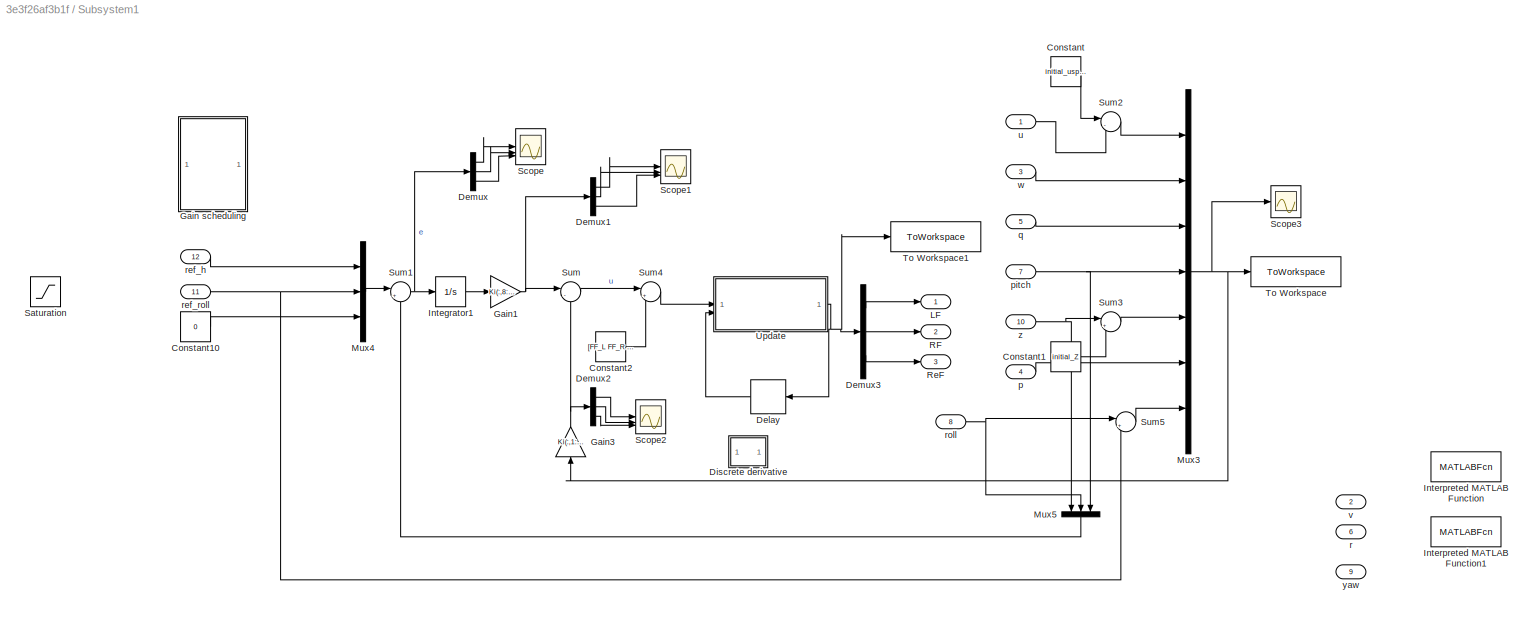
BLOCK [SubSystem] Subsystem1
BLOCK [Constant] Subsystem1/Constant
  Value = initial_uspeed
BLOCK [Constant] Subsystem1/Constant1
  Value = initial_Z
BLOCK [Constant] Subsystem1/Constant10
  Value = 0
BLOCK [Constant] Subsystem1/Constant2
  Value = [FF_L FF_R rear_alfas]
BLOCK [Delay] Subsystem1/Delay
  DelayLength = 1
  InitialCondition = [FF_L;FF_L;rear_alfas]
  InputPortMap = u0
  NameLocation = top
  SampleTime = 0.02
BLOCK [Demux] Subsystem1/Demux
  Outputs = 3
BLOCK [Demux] Subsystem1/Demux1
  Outputs = 3
BLOCK [Demux] Subsystem1/Demux2
  Outputs = 3
BLOCK [Demux] Subsystem1/Demux3
  Outputs = 3
BLOCK [SubSystem] Subsystem1/Discrete derivative
  Commented = on
  NameLocation = top
BLOCK [Constant] Subsystem1/Discrete derivative/Constant
  Value = 0
BLOCK [Reference] Subsystem1/Discrete derivative/Discrete Derivative  REF=simulink/Discrete/Discrete Derivative
  SourceBlock = simulink/Discrete/Discrete Derivative
  SourceType = Discrete Derivative
BLOCK [Step] Subsystem1/Discrete derivative/Step
  Before = -1
  Time = 0.01
BLOCK [Switch] Subsystem1/Discrete derivative/Switch
  Criteria = u2 > Threshold
  InputSameDT = off
  SaturateOnIntegerOverflow = off
BLOCK [Inport] Subsystem1/Discrete derivative/f
BLOCK [Outport] Subsystem1/Discrete derivative/fdot
  VectorParamsAs1DForOutWhenUnconnected = off
BLOCK [SubSystem] Subsystem1/Gain scheduling
  Commented = on
  ErrorFcn = Stateflow.Translate.translate
  PermitHierarchicalResolution = ExplicitOnly
  SFBlockType = MATLAB Function
  TreatAsAtomicUnit = on
BLOCK [Demux] Subsystem1/Gain scheduling/ Demux 
  Outputs = 1
BLOCK [S-Function] Subsystem1/Gain scheduling/ SFunction 
  EnableBusSupport = off
  FunctionName = sf_sfun
  PortCounts = [2 2]
  SFcnIsStateOwnerBlock = off
  SFunctionDeploymentMode = off
  Tag = Stateflow S-Function 1
BLOCK [Terminator] Subsystem1/Gain scheduling/ Terminator 
BLOCK [Inport] Subsystem1/Gain scheduling/u
BLOCK [Outport] Subsystem1/Gain scheduling/u_s
BLOCK [Inport] Subsystem1/Gain scheduling/v
  Port = 2
BLOCK [Gain] Subsystem1/Gain1
  Gain = Ki(:,8:10)
  Multiplication = Matrix(K*u)
BLOCK [Gain] Subsystem1/Gain3
  Gain = Ki(:,1:7)
  Multiplication = Matrix(K*u)
  NameLocation = right
BLOCK [Integrator] Subsystem1/Integrator1
  InitialCondition = [0 0 0]
BLOCK [MATLABFcn] Subsystem1/Interpreted MATLAB Function
  Commented = on
  MATLABFcn = round(u,4)
BLOCK [MATLABFcn] Subsystem1/Interpreted MATLAB Function1
  Commented = on
  MATLABFcn = round(u,4)
  NameLocation = top
BLOCK [Outport] Subsystem1/LF
  VectorParamsAs1DForOutWhenUnconnected = off
BLOCK [Mux] Subsystem1/Mux3
  DisplayOption = bar
  Inputs = 7
BLOCK [Mux] Subsystem1/Mux4
  DisplayOption = bar
  Inputs = 3
BLOCK [Mux] Subsystem1/Mux5
  DisplayOption = bar
  Inputs = 3
  NameLocation = left
BLOCK [Outport] Subsystem1/RF
  Port = 2
  VectorParamsAs1DForOutWhenUnconnected = off
BLOCK [Outport] Subsystem1/ReF
  Port = 3
  VectorParamsAs1DForOutWhenUnconnected = off
BLOCK [Saturate] Subsystem1/Saturation
  LowerLimit = -3
  UpperLimit = 3
BLOCK [Scope] Subsystem1/Scope
  Floating = off
  NumInputPorts = 3
  ScopeSpecificationString = Simulink.scopes.TimeScopeBlockCfg('CurrentConfiguration', extmgr.ConfigurationSet(extmgr.Configuration('Core','General UI',true),extmgr.Configuration('Core','Source UI',true),extmgr.Configuration('Sources','WiredSimulink',true,'DataLoggingVariableName','ScopeData2'),extmgr.Configuration('Visuals','Time Domain',true,'SerializedDisplays',{struct('MinYLimReal','-0.37083','MaxYLimReal','1.66384','YLab...<+1415ch>
BLOCK [Scope] Subsystem1/Scope1
  Floating = off
  NumInputPorts = 3
  ScopeSpecificationString = Simulink.scopes.TimeScopeBlockCfg('CurrentConfiguration', extmgr.ConfigurationSet(extmgr.Configuration('Core','General UI',true),extmgr.Configuration('Core','Source UI',true),extmgr.Configuration('Sources','WiredSimulink',true,'DataLoggingVariableName','ScopeData3'),extmgr.Configuration('Visuals','Time Domain',true,'SerializedDisplays',{struct('MinYLimReal','-1.65691','MaxYLimReal','0.39175','YLab...<+1420ch>
BLOCK [Scope] Subsystem1/Scope2
  Floating = off
  NumInputPorts = 3
  ScopeSpecificationString = Simulink.scopes.TimeScopeBlockCfg('CurrentConfiguration', extmgr.ConfigurationSet(extmgr.Configuration('Core','General UI',true),extmgr.Configuration('Core','Source UI',true),extmgr.Configuration('Sources','WiredSimulink',true,'DataLoggingVariableName','ScopeData4'),extmgr.Configuration('Visuals','Time Domain',true,'SerializedDisplays',{struct('MinYLimReal','-3.07621','MaxYLimReal','2.90889','YLab...<+1421ch>
BLOCK [Scope] Subsystem1/Scope3
  Floating = off
  NumInputPorts = 1
  ScopeSpecificationString = Simulink.scopes.TimeScopeBlockCfg('CurrentConfiguration', extmgr.ConfigurationSet(extmgr.Configuration('Core','General UI',true),extmgr.Configuration('Core','Source UI',true),extmgr.Configuration('Sources','WiredSimulink',true,'DataLoggingVariableName','ScopeData5'),extmgr.Configuration('Visuals','Time Domain',true,'SerializedDisplays',{struct('MinYLimReal','-3.26316','MaxYLimReal','0.6046','YLabe...<+1430ch>
BLOCK [Sum] Subsystem1/Sum
  Inputs = |--
BLOCK [Sum] Subsystem1/Sum1
  Inputs = |+-
BLOCK [Sum] Subsystem1/Sum2
  Inputs = |-+
BLOCK [Sum] Subsystem1/Sum3
  Inputs = |+-
BLOCK [Sum] Subsystem1/Sum4
  Inputs = |++
BLOCK [Sum] Subsystem1/Sum5
  Inputs = |+-
BLOCK [ToWorkspace] Subsystem1/To Workspace
  FixptAsFi = on
  MaxDataPoints = inf
  SampleTime = 0.02
  SaveFormat = Timeseries
  VariableName = x1
BLOCK [ToWorkspace] Subsystem1/To Workspace1
  FixptAsFi = on
  MaxDataPoints = inf
  SampleTime = 0.02
  SaveFormat = Timeseries
  VariableName = u1
BLOCK [SubSystem] Subsystem1/Update
  ErrorFcn = Stateflow.Translate.translate
  PermitHierarchicalResolution = ExplicitOnly
  SFBlockType = MATLAB Function
  TreatAsAtomicUnit = on
BLOCK [Demux] Subsystem1/Update/ Demux 
  Outputs = 1
BLOCK [S-Function] Subsystem1/Update/ SFunction 
  EnableBusSupport = on
  FunctionName = sf_sfun
  PortCounts = [2 2]
  SFcnIsStateOwnerBlock = off
  SFunctionDeploymentMode = off
  Tag = Stateflow S-Function 11
BLOCK [Terminator] Subsystem1/Update/ Terminator 
BLOCK [Outport] Subsystem1/Update/ang
BLOCK [Inport] Subsystem1/Update/last
  Port = 2
BLOCK [Inport] Subsystem1/Update/now
BLOCK [Inport] Subsystem1/p
  Port = 4
BLOCK [Inport] Subsystem1/pitch
  Port = 7
BLOCK [Inport] Subsystem1/q
  Port = 5
BLOCK [Inport] Subsystem1/r
  Port = 6
BLOCK [Inport] Subsystem1/ref_h
  Port = 12
BLOCK [Inport] Subsystem1/ref_roll
  Port = 11
BLOCK [Inport] Subsystem1/roll
  Port = 8
BLOCK [Inport] Subsystem1/u
BLOCK [Inport] Subsystem1/v
  Port = 2
BLOCK [Inport] Subsystem1/w
  Port = 3
BLOCK [Inport] Subsystem1/yaw
  Port = 9
BLOCK [Inport] Subsystem1/z
  Port = 10
LINE BOAT1/Demux1:1 -> BOAT1/model_equations:6
LINE BOAT1/Demux1:2 -> BOAT1/model_equations:7
LINE BOAT1/Demux1:3 -> BOAT1/model_equations:8
LINE BOAT1/Demux2:1 -> BOAT1/model_equations:9
LINE BOAT1/Demux2:2 -> BOAT1/model_equations:10
LINE BOAT1/Demux2:3 -> BOAT1/model_equations:11
LINE BOAT1/Demux3:1 -> BOAT1/model_equations:12
LINE BOAT1/Demux3:2 -> BOAT1/model_equations:13
LINE BOAT1/Demux3:3 -> BOAT1/model_equations:14
LINE BOAT1/Mux1:1 -> BOAT1/Demux1:1
LINE BOAT1/Mux2:1 -> BOAT1/Demux2:1
LINE BOAT1/Mux4:1 -> BOAT1/Demux3:1
LINE BOAT1/Power Consumption Block/2-D Lookup Table:1 -> BOAT1/Power Consumption Block/MATLAB Function1:3
LINE BOAT1/Power Consumption Block/Gain:1 -> BOAT1/Power Consumption Block/2-D Lookup Table:2
NET BOAT1/Power Consumption Block/In1:1 -> BOAT1/Power Consumption Block/Gain:1, BOAT1/Power Consumption Block/MATLAB Function1:1
NET BOAT1/Power Consumption Block/In2:1 -> BOAT1/Power Consumption Block/2-D Lookup Table:1, BOAT1/Power Consumption Block/MATLAB Function1:2
LINE BOAT1/Power Consumption Block/MATLAB Function1:1 -> BOAT1/Power Consumption Block/Out1:1
NET BOAT1/Step:1 -> BOAT1/Sum1:2, BOAT1/Sum:2
LINE BOAT1/Sum1:1 -> BOAT1/model_equations:2
LINE BOAT1/Sum:1 -> BOAT1/model_equations:1
NET BOAT1/aUSPEED:1 -> BOAT1/Mux1:1, BOAT1/u:1
NET BOAT1/bWSPEED:1 -> BOAT1/Mux1:3, BOAT1/w:1
NET BOAT1/cQ:1 -> BOAT1/Mux2:2, BOAT1/q:1
NET BOAT1/fVSPEED:1 -> BOAT1/Mux1:2, BOAT1/v:1
LINE BOAT1/frontfoil_left:1 -> BOAT1/Sum:1
LINE BOAT1/frontfoil_right:1 -> BOAT1/Sum1:1
NET BOAT1/gP:1 -> BOAT1/Mux2:1, BOAT1/p:1
NET BOAT1/hR1:1 -> BOAT1/Mux4:1, BOAT1/pitch:1
NET BOAT1/hR2:1 -> BOAT1/Mux4:2, BOAT1/roll:1
NET BOAT1/hR3:1 -> BOAT1/Mux4:3, BOAT1/yaw:1
NET BOAT1/hR4:1 -> BOAT1/model_equations:15, BOAT1/z:1
NET BOAT1/hR:1 -> BOAT1/Mux2:3, BOAT1/r:1
LINE BOAT1/model_equations:1 -> BOAT1/aUSPEED:1
LINE BOAT1/model_equations:10 -> BOAT1/hR4:1
LINE BOAT1/model_equations:2 -> BOAT1/fVSPEED:1
LINE BOAT1/model_equations:3 -> BOAT1/bWSPEED:1
LINE BOAT1/model_equations:4 -> BOAT1/gP:1
LINE BOAT1/model_equations:5 -> BOAT1/cQ:1
LINE BOAT1/model_equations:6 -> BOAT1/hR:1
LINE BOAT1/model_equations:7 -> BOAT1/hR1:1
LINE BOAT1/model_equations:8 -> BOAT1/hR2:1
LINE BOAT1/model_equations:9 -> BOAT1/hR3:1
LINE BOAT1/rear_foil:1 -> BOAT1/model_equations:3
LINE BOAT1/rpms_motor:1 -> BOAT1/model_equations:4
LINE BOAT1/rudder:1 -> BOAT1/model_equations:5
NET BOAT1:1 -> Goto1:1, Mux1:1
LINE BOAT1:10 -> Mux1:10
LINE BOAT1:2 -> Mux1:2
LINE BOAT1:3 -> Mux1:3
LINE BOAT1:4 -> Mux1:4
LINE BOAT1:5 -> Mux1:5
LINE BOAT1:6 -> Mux1:6
LINE BOAT1:7 -> Mux1:7
LINE BOAT1:8 -> Mux1:8
LINE BOAT1:9 -> Mux1:9
LINE Clock1:1 -> Roll Ref function:1
LINE Clock:1 -> Rudder function:1
LINE Constant2:1 -> PID:2
LINE Demux1:1 -> Longitudinal:1
LINE Demux1:2 -> Longitudinal:2
LINE Demux1:3 -> Longitudinal:3
LINE Demux1:4 -> Longitudinal:4
LINE Demux1:5 -> Longitudinal:5
LINE Demux3:1 -> Lateral:1
LINE Demux3:2 -> Lateral:2
LINE Demux3:3 -> Lateral:3
LINE Demux3:4 -> Lateral:4
LINE Demux3:5 -> Lateral:5
LINE Demux:1 -> Subsystem1:1
LINE Demux:10 -> Subsystem1:10
LINE Demux:2 -> Subsystem1:2
LINE Demux:3 -> Subsystem1:3
LINE Demux:4 -> Subsystem1:4
LINE Demux:5 -> Subsystem1:5
LINE Demux:6 -> Subsystem1:6
LINE Demux:7 -> Subsystem1:7
LINE Demux:8 -> Subsystem1:8
LINE Demux:9 -> Subsystem1:9
LINE From1:1 -> PID:1
LINE From:1 -> Demux:1
NET Mux1:1 -> Goto:1, Selector1:1, Selector:1
LINE PID/Constant2:1 -> PID/Sum3:2
LINE PID/PID Controller:1 -> PID/Sum3:1
LINE PID/Rate Limiter:1 -> PID/Saturation1:1
LINE PID/Saturation1:1 -> PID/rpms:1
LINE PID/Sum2:1 -> PID/PID Controller:1
LINE PID/Sum3:1 -> PID/Rate Limiter:1
LINE PID/u:1 -> PID/Sum2:2
LINE PID/u_ref:1 -> PID/Sum2:1
LINE PID:1 -> BOAT1:4
NET Roll Ref function:1 -> Scope74:1, Subsystem1:11
NET Rudder function:1 -> BOAT1:5, Scope71:1
LINE Selector1:1 -> Demux3:1
LINE Selector:1 -> Demux1:1
LINE Step:1 -> Subsystem1:12
NET Subsystem/Clock:1 -> Subsystem/Switch1:2, Subsystem/Switch:2
LINE Subsystem/Step1:1 -> Subsystem/Switch:3
LINE Subsystem/Step2:1 -> Subsystem/Switch1:1
LINE Subsystem/Step:1 -> Subsystem/Switch:1
LINE Subsystem/Switch1:1 -> Subsystem/ref_roll:1
LINE Subsystem/Switch:1 -> Subsystem/Switch1:3
LINE Subsystem1/Constant10:1 -> Subsystem1/Mux4:3
LINE Subsystem1/Constant1:1 -> Subsystem1/Sum3:2
LINE Subsystem1/Constant2:1 -> Subsystem1/Sum4:2
LINE Subsystem1/Constant:1 -> Subsystem1/Sum2:1
LINE Subsystem1/Delay:1 -> Subsystem1/Update:2
LINE Subsystem1/Demux1:1 -> Subsystem1/Scope1:1
LINE Subsystem1/Demux1:2 -> Subsystem1/Scope1:2
LINE Subsystem1/Demux1:3 -> Subsystem1/Scope1:3
LINE Subsystem1/Demux2:1 -> Subsystem1/Scope2:1
LINE Subsystem1/Demux2:2 -> Subsystem1/Scope2:2
LINE Subsystem1/Demux2:3 -> Subsystem1/Scope2:3
LINE Subsystem1/Demux3:1 -> Subsystem1/LF:1
LINE Subsystem1/Demux3:2 -> Subsystem1/RF:1
LINE Subsystem1/Demux3:3 -> Subsystem1/ReF:1
LINE Subsystem1/Demux:1 -> Subsystem1/Scope:1
LINE Subsystem1/Demux:2 -> Subsystem1/Scope:2
LINE Subsystem1/Demux:3 -> Subsystem1/Scope:3
LINE Subsystem1/Discrete derivative/Constant:1 -> Subsystem1/Discrete derivative/Switch:3
LINE Subsystem1/Discrete derivative/Discrete Derivative:1 -> Subsystem1/Discrete derivative/Switch:1
LINE Subsystem1/Discrete derivative/Step:1 -> Subsystem1/Discrete derivative/Switch:2
LINE Subsystem1/Discrete derivative/Switch:1 -> Subsystem1/Discrete derivative/fdot:1
LINE Subsystem1/Discrete derivative/f:1 -> Subsystem1/Discrete derivative/Discrete Derivative:1
NET Subsystem1/Gain1:1 -> Subsystem1/Demux1:1, Subsystem1/Sum:1
NET Subsystem1/Gain3:1 -> Subsystem1/Demux2:1, Subsystem1/Sum:2
LINE Subsystem1/Integrator1:1 -> Subsystem1/Gain1:1
NET Subsystem1/Mux3:1 -> Subsystem1/Gain3:1, Subsystem1/Scope3:1, Subsystem1/To Workspace:1
LINE Subsystem1/Mux4:1 -> Subsystem1/Sum1:1
LINE Subsystem1/Mux5:1 -> Subsystem1/Sum1:2
NET Subsystem1/Sum1:1 -> Subsystem1/Demux:1, Subsystem1/Integrator1:1
LINE Subsystem1/Sum2:1 -> Subsystem1/Mux3:1
LINE Subsystem1/Sum3:1 -> Subsystem1/Mux3:5
LINE Subsystem1/Sum4:1 -> Subsystem1/Update:1
LINE Subsystem1/Sum5:1 -> Subsystem1/Mux3:7
LINE Subsystem1/Sum:1 -> Subsystem1/Sum4:1
NET Subsystem1/Update:1 -> Subsystem1/Delay:1, Subsystem1/Demux3:1, Subsystem1/To Workspace1:1
LINE Subsystem1/p:1 -> Subsystem1/Mux3:6
NET Subsystem1/pitch:1 -> Subsystem1/Mux3:4, Subsystem1/Mux5:3
LINE Subsystem1/q:1 -> Subsystem1/Mux3:3
LINE Subsystem1/ref_h:1 -> Subsystem1/Mux4:1
NET Subsystem1/ref_roll:1 -> Subsystem1/Mux4:2, Subsystem1/Sum5:2
NET Subsystem1/roll:1 -> Subsystem1/Mux5:2, Subsystem1/Sum5:1
LINE Subsystem1/u:1 -> Subsystem1/Sum2:2
LINE Subsystem1/w:1 -> Subsystem1/Mux3:2
NET Subsystem1/z:1 -> Subsystem1/Mux5:1, Subsystem1/Sum3:1
NET Subsystem1:1 -> Angles:1, BOAT1:1
NET Subsystem1:2 -> Angles:2, BOAT1:2
NET Subsystem1:3 -> Angles:3, BOAT1:3
LINE Subsystem:1 -> Scope70:1
note: NET lines group one-source signal fan-out (src -> all destinations, sorted); 1:1 wires keep LINE
CHART Subsystem1/Gain scheduling states=1 transitions=1
  STATE_LABEL 'eML_blk_kernel()'
  STATE_LABEL 'SCRIPT:\nfunction u_s = fcn(u,v)\nv_ref = 7;\nif(v>v_ref)\n    u_s = u*v_ref^2/v^2;\nelse\n    u_s = u;\nend\n'
CHART Rudder function states=1 transitions=1
  STATE_LABEL 'eML_blk_kernel()'
  STATE_LABEL 'SCRIPT:\nfunction y = fcn(u)\nt1 = 10;\nt2 = 10.5;\nt3 = 14.5;\nt4 = 15;\nt5 = 15;\nt6 = 15;\n\nv1 = 0;\nv2 = 15;\nv3 = 0;\nv4 = 0;\n\nif (u < t1)\n    y = v1;\nelseif (t1 <= u && u < t2)\n    y = (v2-v1)/(t2-t1)*(u-t1) + v1;\nelseif (t2 <= u && u < t3)\n    y = v2;\nelseif (t3 <= u && u < t4)\n    y = (v3-v2)/(t4-t3)*(u-t3) + v2;\nelseif (t4 <= u && u < t5)\n    y = v3;\nelseif (t5 <= u && u < t6)\n    y = (v4-v3)/(t6-t5...<+42ch>'
CHART Roll Ref function states=1 transitions=1
  STATE_LABEL 'eML_blk_kernel()'
  STATE_LABEL 'SCRIPT:\nfunction y = fcn(u)\nt1 = 10;\nt2 = 10.5;\nt3 = 14.5;\nt4 = 15;\nt5 = 15;\nt6 = 15;\n\nv1 = 0;\nv2 = 10;\nv3 = 0;\nv4 = 0;\n\nif (u < t1)\n    y = v1;\nelseif (t1 <= u && u < t2)\n    y = (v2-v1)/(t2-t1)*(u-t1) + v1;\nelseif (t2 <= u && u < t3)\n    y = v2;\nelseif (t3 <= u && u < t4)\n    y = (v3-v2)/(t4-t3)*(u-t3) + v2;\nelseif (t4 <= u && u < t5)\n    y = v3;\nelseif (t5 <= u && u < t6)\n    y = (v4-v3)/(t6-t5...<+42ch>'
CHART BOAT1/Power Consumption Block/MATLAB Function1 states=1 transitions=1
  STATE_LABEL 'eML_blk_kernel()'
  STATE_LABEL 'SCRIPT:\nfunction P_elec = fcn(Torque,Rpms_motor,Eficiencia_motor)\nP_mec = Torque*Rpms_motor*2*pi/60;\nP_elec = P_mec/Eficiencia_motor;'
CHART BOAT1/model_equations states=1 transitions=1
  STATE_LABEL 'eML_blk_kernel()'
  STATE_LABEL 'SCRIPT:\nfunction [u_dot,v_dot,w_dot,p_dot,q_dot,r_dot,Pitch_dot,Roll_dot,Yaw_dot,Z_dot,Torque,Rpms_motor] = model_equations(Act_front_left,Act_front_right,Act_rear,Rpms_motor,Rudder,u,v,w,p,qq,r,Pitch,Roll,Yaw,z_cm)\n\n%%%%%%%%%%%%%%%%%%%%%%%%%%%%%%%%%%%%%%%%%%%%%%%%%SS\n%%%%%%%%%%%%%%%% constants %%%%%%%%%%%%%%%%%%%%%%\n%%%%%%%%%%%%%%%%%%%%%%%%%%%%%%%%%%%%%%%%%%%%%%%%%\ng = 9.81; %gravity (m/s^2)\nrho=...<+3608ch>'
CHART Subsystem1/Update states=1 transitions=1
  STATE_LABEL 'eML_blk_kernel()'
  STATE_LABEL 'SCRIPT:\nfunction ang = fcn(now, last)\ndelta_t = 0.02;\n\nLF_now = now(1);\nRF_now = now(2);\nReF_now = now(3);\nLF_last = last(1);\nRF_last = last(2);\nReF_last = last(3);\n\n%% Slew rate limit\n\nFF_max_rate = 6; %º/s\nReF_max_rate = 6;\nLF_deriv = sat((LF_now-LF_last)/delta_t, FF_max_rate, -FF_max_rate);\nRF_deriv = sat((RF_now-RF_last)/delta_t, FF_max_rate, -FF_max_rate);\nReF_deriv = sat((ReF_now-ReF_last)/d...<+570ch>'
CHART  states=0 transitions=0
CHART  states=0 transitions=0
CHART  states=0 transitions=0
CHART  states=0 transitions=0
CHART  states=0 transitions=0
CHART  states=0 transitions=0
